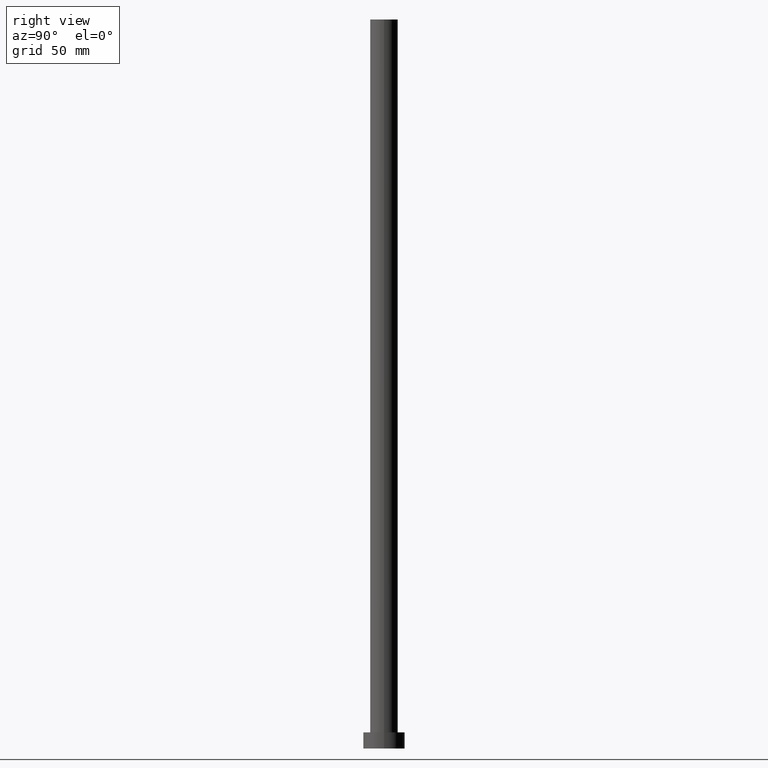
[diagram: clean part render]
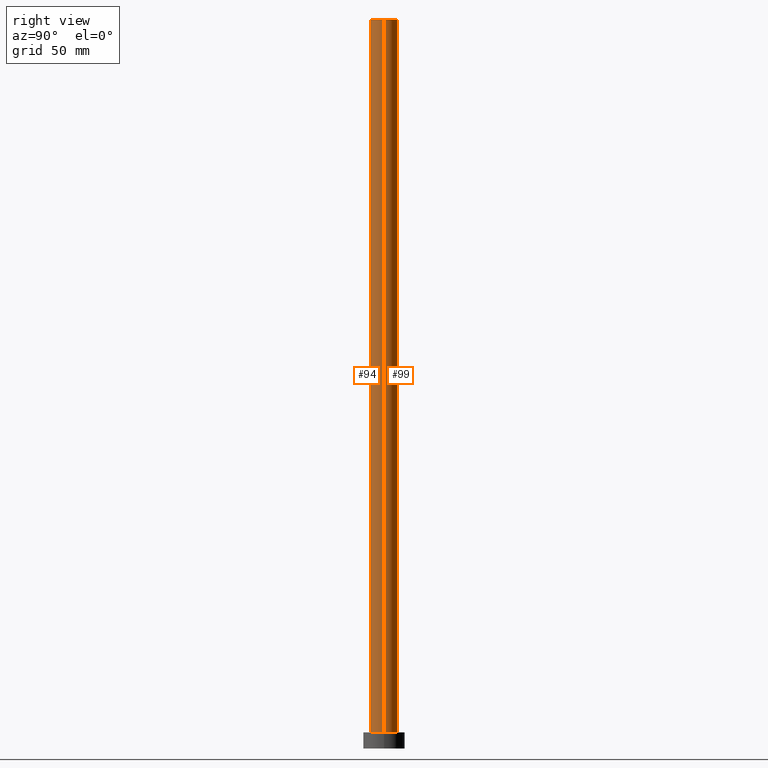
[diagram: same view with one multi-face feature highlighted, each face labeled with its STEP entity id]
A machine part, right view. The highlighted faces form ONE feature: a constant-radius fillet chain: 2 tangent blend faces with common blend radius 6 mm. The faces share edges in the B-rep.
Their STEP definitions:
[1] entity #94 (Cylinder):
#2 = DIRECTION ( 'NONE',  ( 0.000000000000000000, 0.000000000000000000, 1.000000000000000000 ) ) ;
#12 = CYLINDRICAL_SURFACE ( 'NONE', #13, 6.000000000000000888 ) ;
#13 = AXIS2_PLACEMENT_3D ( 'NONE', #115, #247, #96 ) ;
#14 = CARTESIAN_POINT ( 'NONE',  ( -6.000000000000000888, 0.000000000000000000, 315.0000000000000000 ) ) ;
#16 = EDGE_CURVE ( 'NONE', #227, #167, #33, .T. ) ;
#33 = LINE ( 'NONE', #235, #131 ) ;
#37 = CIRCLE ( 'NONE', #47, 6.000000000000000888 ) ;
#47 = AXIS2_PLACEMENT_3D ( 'NONE', #104, #2, #126 ) ;
#51 = CARTESIAN_POINT ( 'NONE',  ( 6.000000000000000888, 7.347880794884120722E-16, 7.000000000000000000 ) ) ;
#56 = DIRECTION ( 'NONE',  ( 1.000000000000000000, 0.000000000000000000, 0.000000000000000000 ) ) ;
#57 = DIRECTION ( 'NONE',  ( -0.000000000000000000, -0.000000000000000000, -1.000000000000000000 ) ) ;
#60 = EDGE_CURVE ( 'NONE', #188, #241, #98, .T. ) ;
#78 = CARTESIAN_POINT ( 'NONE',  ( -6.000000000000000888, 0.000000000000000000, 7.000000000000000000 ) ) ;
#79 = AXIS2_PLACEMENT_3D ( 'NONE', #249, #150, #56 ) ;
#84 = ORIENTED_EDGE ( 'NONE', *, *, #16, .F. ) ;
#91 = ORIENTED_EDGE ( 'NONE', *, *, #60, .T. ) ;
#93 = ORIENTED_EDGE ( 'NONE', *, *, #184, .F. ) ;
#94 = ADVANCED_FACE ( 'NONE', ( #252 ), #12, .T. ) ;
#96 = DIRECTION ( 'NONE',  ( -1.000000000000000000, 0.000000000000000000, 0.000000000000000000 ) ) ;
#98 = LINE ( 'NONE', #14, #206 ) ;
#104 = CARTESIAN_POINT ( 'NONE',  ( 0.000000000000000000, 0.000000000000000000, 7.000000000000000000 ) ) ;
#111 = ORIENTED_EDGE ( 'NONE', *, *, #225, .T. ) ;
#115 = CARTESIAN_POINT ( 'NONE',  ( 0.000000000000000000, 0.000000000000000000, 315.0000000000000000 ) ) ;
#126 = DIRECTION ( 'NONE',  ( 1.000000000000000000, 0.000000000000000000, 0.000000000000000000 ) ) ;
#131 = VECTOR ( 'NONE', #151, 1000.000000000000000 ) ;
#150 = DIRECTION ( 'NONE',  ( 0.000000000000000000, 0.000000000000000000, 1.000000000000000000 ) ) ;
#151 = DIRECTION ( 'NONE',  ( -0.000000000000000000, -0.000000000000000000, -1.000000000000000000 ) ) ;
#159 = CARTESIAN_POINT ( 'NONE',  ( 6.000000000000000888, 7.347880794884120722E-16, 315.0000000000000000 ) ) ;
#167 = VERTEX_POINT ( 'NONE', #51 ) ;
#184 = EDGE_CURVE ( 'NONE', #188, #227, #208, .T. ) ;
#188 = VERTEX_POINT ( 'NONE', #238 ) ;
#193 = EDGE_LOOP ( 'NONE', ( #84, #93, #91, #111 ) ) ;
#206 = VECTOR ( 'NONE', #57, 1000.000000000000000 ) ;
#208 = CIRCLE ( 'NONE', #79, 6.000000000000000888 ) ;
#225 = EDGE_CURVE ( 'NONE', #241, #167, #37, .T. ) ;
#227 = VERTEX_POINT ( 'NONE', #159 ) ;
#235 = CARTESIAN_POINT ( 'NONE',  ( 6.000000000000000888, 7.347880794884120722E-16, 315.0000000000000000 ) ) ;
#238 = CARTESIAN_POINT ( 'NONE',  ( -6.000000000000000888, 0.000000000000000000, 315.0000000000000000 ) ) ;
#241 = VERTEX_POINT ( 'NONE', #78 ) ;
#247 = DIRECTION ( 'NONE',  ( -0.000000000000000000, -0.000000000000000000, -1.000000000000000000 ) ) ;
#249 = CARTESIAN_POINT ( 'NONE',  ( 0.000000000000000000, 0.000000000000000000, 315.0000000000000000 ) ) ;
#252 = FACE_OUTER_BOUND ( 'NONE', #193, .T. ) ;
[2] entity #99 (Cylinder):
#7 = ORIENTED_EDGE ( 'NONE', *, *, #60, .F. ) ;
#10 = ORIENTED_EDGE ( 'NONE', *, *, #29, .F. ) ;
#14 = CARTESIAN_POINT ( 'NONE',  ( -6.000000000000000888, 0.000000000000000000, 315.0000000000000000 ) ) ;
#16 = EDGE_CURVE ( 'NONE', #227, #167, #33, .T. ) ;
#29 = EDGE_CURVE ( 'NONE', #227, #188, #209, .T. ) ;
#33 = LINE ( 'NONE', #235, #131 ) ;
#34 = ORIENTED_EDGE ( 'NONE', *, *, #216, .T. ) ;
#39 = CARTESIAN_POINT ( 'NONE',  ( 0.000000000000000000, 0.000000000000000000, 315.0000000000000000 ) ) ;
#40 = CARTESIAN_POINT ( 'NONE',  ( 0.000000000000000000, 0.000000000000000000, 315.0000000000000000 ) ) ;
#43 = DIRECTION ( 'NONE',  ( 1.000000000000000000, 0.000000000000000000, 0.000000000000000000 ) ) ;
#51 = CARTESIAN_POINT ( 'NONE',  ( 6.000000000000000888, 7.347880794884120722E-16, 7.000000000000000000 ) ) ;
#52 = CIRCLE ( 'NONE', #162, 6.000000000000000888 ) ;
#57 = DIRECTION ( 'NONE',  ( -0.000000000000000000, -0.000000000000000000, -1.000000000000000000 ) ) ;
#60 = EDGE_CURVE ( 'NONE', #188, #241, #98, .T. ) ;
#65 = ORIENTED_EDGE ( 'NONE', *, *, #16, .T. ) ;
#69 = CYLINDRICAL_SURFACE ( 'NONE', #196, 6.000000000000000888 ) ;
#78 = CARTESIAN_POINT ( 'NONE',  ( -6.000000000000000888, 0.000000000000000000, 7.000000000000000000 ) ) ;
#88 = AXIS2_PLACEMENT_3D ( 'NONE', #39, #119, #116 ) ;
#98 = LINE ( 'NONE', #14, #206 ) ;
#99 = ADVANCED_FACE ( 'NONE', ( #176 ), #69, .T. ) ;
#114 = EDGE_LOOP ( 'NONE', ( #10, #65, #34, #7 ) ) ;
#116 = DIRECTION ( 'NONE',  ( 1.000000000000000000, 0.000000000000000000, 0.000000000000000000 ) ) ;
#119 = DIRECTION ( 'NONE',  ( 0.000000000000000000, 0.000000000000000000, 1.000000000000000000 ) ) ;
#123 = CARTESIAN_POINT ( 'NONE',  ( 0.000000000000000000, 0.000000000000000000, 7.000000000000000000 ) ) ;
#131 = VECTOR ( 'NONE', #151, 1000.000000000000000 ) ;
#139 = DIRECTION ( 'NONE',  ( -1.000000000000000000, 0.000000000000000000, 0.000000000000000000 ) ) ;
#151 = DIRECTION ( 'NONE',  ( -0.000000000000000000, -0.000000000000000000, -1.000000000000000000 ) ) ;
#156 = DIRECTION ( 'NONE',  ( -0.000000000000000000, -0.000000000000000000, -1.000000000000000000 ) ) ;
#159 = CARTESIAN_POINT ( 'NONE',  ( 6.000000000000000888, 7.347880794884120722E-16, 315.0000000000000000 ) ) ;
#161 = DIRECTION ( 'NONE',  ( 0.000000000000000000, 0.000000000000000000, 1.000000000000000000 ) ) ;
#162 = AXIS2_PLACEMENT_3D ( 'NONE', #123, #161, #43 ) ;
#167 = VERTEX_POINT ( 'NONE', #51 ) ;
#176 = FACE_OUTER_BOUND ( 'NONE', #114, .T. ) ;
#188 = VERTEX_POINT ( 'NONE', #238 ) ;
#196 = AXIS2_PLACEMENT_3D ( 'NONE', #40, #156, #139 ) ;
#206 = VECTOR ( 'NONE', #57, 1000.000000000000000 ) ;
#209 = CIRCLE ( 'NONE', #88, 6.000000000000000888 ) ;
#216 = EDGE_CURVE ( 'NONE', #167, #241, #52, .T. ) ;
#227 = VERTEX_POINT ( 'NONE', #159 ) ;
#235 = CARTESIAN_POINT ( 'NONE',  ( 6.000000000000000888, 7.347880794884120722E-16, 315.0000000000000000 ) ) ;
#238 = CARTESIAN_POINT ( 'NONE',  ( -6.000000000000000888, 0.000000000000000000, 315.0000000000000000 ) ) ;
#241 = VERTEX_POINT ( 'NONE', #78 ) ;